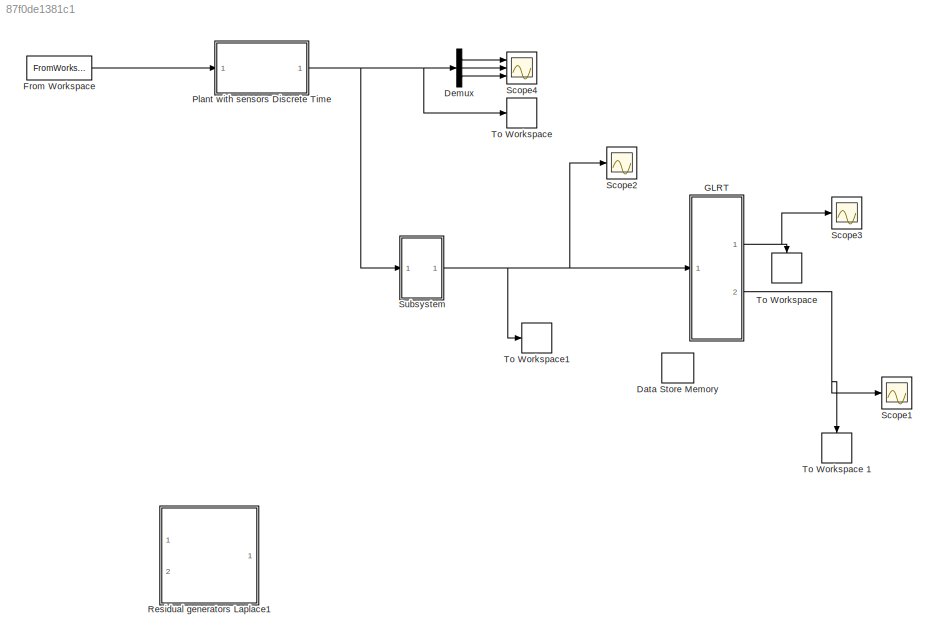
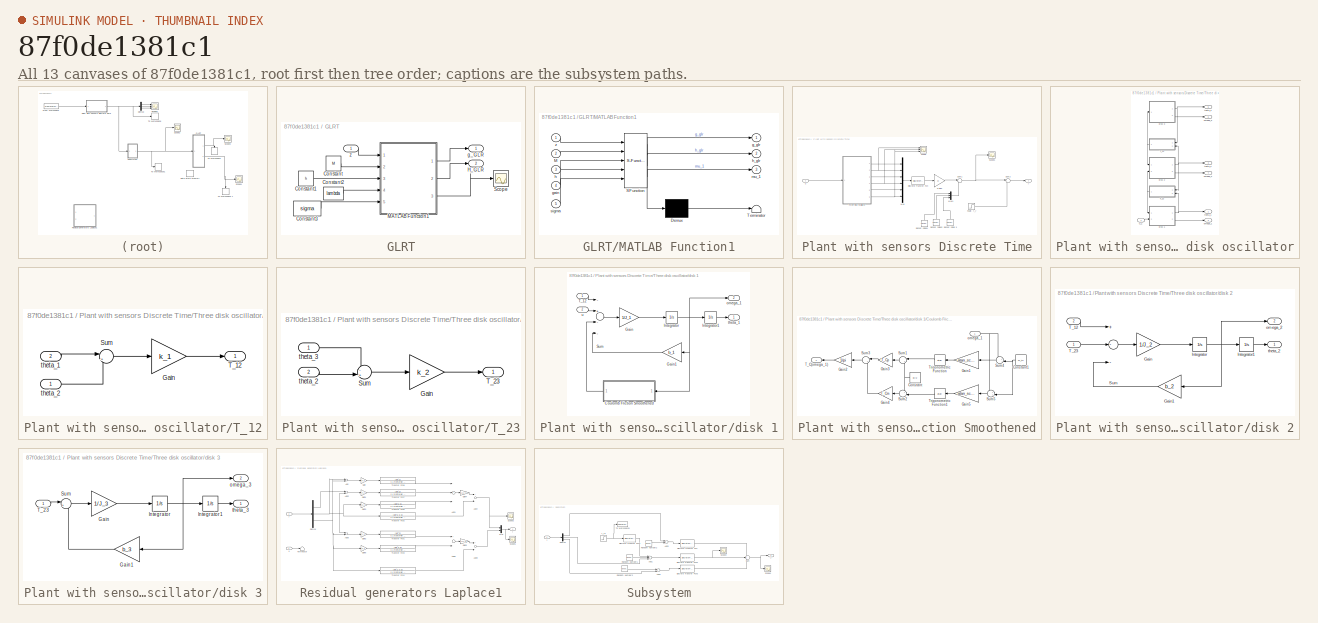
[diagram: thumbnail index - all 13 canvases of the model, root first then tree order]
MODEL slx_87f0de1381c1
KIND model
CONFIG AbsTol = auto
CONFIG EnableMultiTasking = off
CONFIG FixedStep = auto
CONFIG MaxStep = auto
CONFIG MinStep = auto
CONFIG RelTol = 1e-3
CONFIG SampleTimeConstraint = Unconstrained
CONFIG Solver = VariableStepAuto
CONFIG SolverName = VariableStepAuto
CONFIG StartTime = 0.0
CONFIG StopTime = simTime
BLOCK [DataStoreMemory] Data Store Memory
  DataStoreName = data
  InitialValue = A_init
  OutDataTypeStr = double
  ReadBeforeWriteMsg = warning
  ShowAdditionalParam = off
  SignalType = real
  WriteAfterReadMsg = warning
  WriteAfterWriteMsg = warning
BLOCK [Demux] Demux
  DisplayOption = bar
  Outputs = 3
  Ports = [1, 3]
BLOCK [FromWorkspace] From Workspace
  SampleTime = 0
  VariableName = u
  ZeroCross = on
BLOCK [SubSystem] GLRT
  Ports = [1, 2]
  RequestExecContextInheritance = off
BLOCK [Constant] GLRT/Constant
  Value = M
BLOCK [Constant] GLRT/Constant1
  Value = h
BLOCK [Constant] GLRT/Constant2
  Value = lambda
BLOCK [Constant] GLRT/Constant3
  Value = sigma
BLOCK [Outport] GLRT/H_GLR
  IconDisplay = Port number
  Port = 2
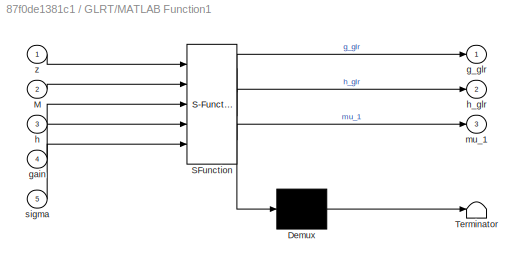
BLOCK [SubSystem] GLRT/MATLAB Function1
  ErrorFcn = Stateflow.Translate.translate
  PermitHierarchicalResolution = ExplicitOnly
  Ports = [5, 3]
  RequestExecContextInheritance = off
  SFBlockType = MATLAB Function
  TreatAsAtomicUnit = on
BLOCK [Demux] GLRT/MATLAB Function1/ Demux 
  Outputs = 1
  Ports = [1, 1]
BLOCK [S-Function] GLRT/MATLAB Function1/ SFunction 
  EnableBusSupport = on
  FunctionName = sf_sfun
  PortCounts = [5 4]
  Ports = [5, 4]
  SFcnIsStateOwnerBlock = off
  SFunctionDeploymentMode = off
  Tag = Stateflow S-Function Lab7 1
BLOCK [Terminator] GLRT/MATLAB Function1/ Terminator 
BLOCK [Inport] GLRT/MATLAB Function1/M
  IconDisplay = Port number
  Port = 2
BLOCK [Outport] GLRT/MATLAB Function1/g_glr
  IconDisplay = Port number
BLOCK [Inport] GLRT/MATLAB Function1/gain
  IconDisplay = Port number
  Port = 4
BLOCK [Inport] GLRT/MATLAB Function1/h
  IconDisplay = Port number
  Port = 3
BLOCK [Outport] GLRT/MATLAB Function1/h_glr
  IconDisplay = Port number
  Port = 2
BLOCK [Outport] GLRT/MATLAB Function1/mu_1
  IconDisplay = Port number
  Port = 3
BLOCK [Inport] GLRT/MATLAB Function1/sigma
  IconDisplay = Port number
  Port = 5
BLOCK [Inport] GLRT/MATLAB Function1/z
  IconDisplay = Port number
BLOCK [Scope] GLRT/Scope
  Floating = off
  NumInputPorts = 1
  Ports = [1]
  ScopeSpecificationString = Simulink.scopes.TimeScopeBlockCfg('CurrentConfiguration', extmgr.ConfigurationSet(extmgr.Configuration('Core','General UI',true),extmgr.Configuration('Core','Source UI',true),extmgr.Configuration('Sources','WiredSimulink',true,'DataLoggingVariableName','ScopeData1'),extmgr.Configuration('Visuals','Time Domain',true,'SerializedDisplays',{struct('MinYLimReal','-0.09358','MaxYLimReal','0.22462','YLab...<+1380ch>
BLOCK [Outport] GLRT/g_GLR
  IconDisplay = Port number
BLOCK [Inport] GLRT/z
  IconDisplay = Port number
BLOCK [SubSystem] Plant with sensors Discrete Time
  Ports = [1, 1]
  RequestExecContextInheritance = off
BLOCK [DiscreteTransferFcn] Plant with sensors Discrete Time/Discrete Transfer Fcn
  Denominator = [1]
  InputPortMap = u0
  Ports = [1, 1]
  SampleTime = 0.004
BLOCK [Step] Plant with sensors Discrete Time/Fault: f_y
  After = [0;f_m;0]
  Before = [0;0;0]
  Commented = on
  SampleTime = 0
  Time = 8.5
BLOCK [Gain] Plant with sensors Discrete Time/Gain2
  Gain = C
  Multiplication = Matrix(K*u) (u vector)
  OutDataTypeStr = Inherit: Inherit via internal rule
  ParamDataTypeStr = Inherit: Inherit via internal rule
  SaturateOnIntegerOverflow = off
BLOCK [Mux] Plant with sensors Discrete Time/Mux
  DisplayOption = bar
  Inputs = 6
  Ports = [6, 1]
BLOCK [Mux] Plant with sensors Discrete Time/Mux1
  Commented = on
  DisplayOption = bar
  Inputs = 3
  Ports = [3, 1]
BLOCK [Scope] Plant with sensors Discrete Time/Scope
  Floating = off
  NumInputPorts = 3
  Ports = [3]
  ScopeSpecificationString = Simulink.scopes.TimeScopeBlockCfg('CurrentConfiguration', extmgr.ConfigurationSet(extmgr.Configuration('Core','General UI',true),extmgr.Configuration('Core','Source UI',true),extmgr.Configuration('Sources','WiredSimulink',true),extmgr.Configuration('Visuals','Time Domain',true,'SerializedDisplays',{struct('MinYLimReal','-13.61032','MaxYLimReal','12.65081','YLabelReal','','MinYLimMag','0.00000','Ma...<+2776ch>
BLOCK [Scope] Plant with sensors Discrete Time/Scope1
  Floating = off
  NumInputPorts = 1
  Ports = [1]
  ScopeSpecificationString = Simulink.scopes.TimeScopeBlockCfg('CurrentConfiguration', extmgr.ConfigurationSet(extmgr.Configuration('Core','General UI',true),extmgr.Configuration('Core','Source UI',true),extmgr.Configuration('Sources','WiredSimulink',true,'DataLoggingVariableName','ScopeData4'),extmgr.Configuration('Visuals','Time Domain',true,'SerializedDisplays',{struct('MinYLimReal','-3.17099','MaxYLimReal','3.64245','YLab...<+2765ch>
BLOCK [RandomNumber] Plant with sensors Discrete Time/Sensor noise 3
  Commented = on
  SampleTime = T_s
  Seed = 2159
  Variance = 0.01^2
BLOCK [RandomNumber] Plant with sensors Discrete Time/Sensor noise1
  Commented = on
  SampleTime = T_s
  Seed = 215924
  Variance = 0.01^2
BLOCK [RandomNumber] Plant with sensors Discrete Time/Sensor noise2
  Commented = on
  SampleTime = T_s
  Seed = 21524
  Variance = 0.01^2
BLOCK [Sum] Plant with sensors Discrete Time/Sum1
  IconShape = round
  InputSameDT = off
  Inputs = |++
  OutDataTypeStr = Inherit: Inherit via internal rule
  Ports = [2, 1]
  SaturateOnIntegerOverflow = off
BLOCK [Sum] Plant with sensors Discrete Time/Sum2
  IconShape = round
  InputSameDT = off
  Inputs = |++
  OutDataTypeStr = Inherit: Inherit via internal rule
  Ports = [2, 1]
  SaturateOnIntegerOverflow = off
BLOCK [SubSystem] Plant with sensors Discrete Time/Three disk oscillator
  Ports = [1, 6]
  RequestExecContextInheritance = off
BLOCK [SubSystem] Plant with sensors Discrete Time/Three disk oscillator/T_12
  Ports = [2, 1]
  RequestExecContextInheritance = off
BLOCK [Gain] Plant with sensors Discrete Time/Three disk oscillator/T_12/Gain
  Gain = k_1
  OutDataTypeStr = Inherit: Inherit via internal rule
  ParamDataTypeStr = Inherit: Inherit via internal rule
  SaturateOnIntegerOverflow = off
BLOCK [Sum] Plant with sensors Discrete Time/Three disk oscillator/T_12/Sum
  IconShape = round
  InputSameDT = off
  Inputs = |+-
  OutDataTypeStr = Inherit: Inherit via internal rule
  Ports = [2, 1]
  SaturateOnIntegerOverflow = off
BLOCK [Outport] Plant with sensors Discrete Time/Three disk oscillator/T_12/T_12
  IconDisplay = Port number
BLOCK [Inport] Plant with sensors Discrete Time/Three disk oscillator/T_12/theta_1
  IconDisplay = Port number
  Port = 2
BLOCK [Inport] Plant with sensors Discrete Time/Three disk oscillator/T_12/theta_2
  IconDisplay = Port number
BLOCK [SubSystem] Plant with sensors Discrete Time/Three disk oscillator/T_23
  Ports = [2, 1]
  RequestExecContextInheritance = off
BLOCK [Gain] Plant with sensors Discrete Time/Three disk oscillator/T_23/Gain
  Gain = k_2
  OutDataTypeStr = Inherit: Inherit via internal rule
  ParamDataTypeStr = Inherit: Inherit via internal rule
  SaturateOnIntegerOverflow = off
BLOCK [Sum] Plant with sensors Discrete Time/Three disk oscillator/T_23/Sum
  IconShape = round
  InputSameDT = off
  Inputs = -+|
  OutDataTypeStr = Inherit: Inherit via internal rule
  Ports = [2, 1]
  SaturateOnIntegerOverflow = off
BLOCK [Outport] Plant with sensors Discrete Time/Three disk oscillator/T_23/T_23
  IconDisplay = Port number
BLOCK [Inport] Plant with sensors Discrete Time/Three disk oscillator/T_23/theta_2
  IconDisplay = Port number
  Port = 2
BLOCK [Inport] Plant with sensors Discrete Time/Three disk oscillator/T_23/theta_3
  IconDisplay = Port number
BLOCK [SubSystem] Plant with sensors Discrete Time/Three disk oscillator/disk 1
  Ports = [2, 2]
  RequestExecContextInheritance = off
BLOCK [SubSystem] Plant with sensors Discrete Time/Three disk oscillator/disk 1/Coulomb Friction Smoothened
  Ports = [1, 1]
  RequestExecContextInheritance = off
BLOCK [Constant] Plant with sensors Discrete Time/Three disk oscillator/disk 1/Coulomb Friction Smoothened/Constant
  Value = pi/2
BLOCK [Constant] Plant with sensors Discrete Time/Three disk oscillator/disk 1/Coulomb Friction Smoothened/Constant1
  Value = w_th
BLOCK [Gain] Plant with sensors Discrete Time/Three disk oscillator/disk 1/Coulomb Friction Smoothened/Gain1
  Gain = atan_scale
  OutDataTypeStr = Inherit: Inherit via internal rule
  ParamDataTypeStr = Inherit: Inherit via internal rule
  SaturateOnIntegerOverflow = off
BLOCK [Gain] Plant with sensors Discrete Time/Three disk oscillator/disk 1/Coulomb Friction Smoothened/Gain2
  Gain = 1/pi
  OutDataTypeStr = Inherit: Inherit via internal rule
  ParamDataTypeStr = Inherit: Inherit via internal rule
  SaturateOnIntegerOverflow = off
BLOCK [Gain] Plant with sensors Discrete Time/Three disk oscillator/disk 1/Coulomb Friction Smoothened/Gain3
  Gain = T_Cp
  OutDataTypeStr = Inherit: Inherit via internal rule
  ParamDataTypeStr = Inherit: Inherit via internal rule
  SaturateOnIntegerOverflow = off
BLOCK [Gain] Plant with sensors Discrete Time/Three disk oscillator/disk 1/Coulomb Friction Smoothened/Gain4
  Gain = T_Cm
  OutDataTypeStr = Inherit: Inherit via internal rule
  ParamDataTypeStr = Inherit: Inherit via internal rule
  SaturateOnIntegerOverflow = off
BLOCK [Gain] Plant with sensors Discrete Time/Three disk oscillator/disk 1/Coulomb Friction Smoothened/Gain5
  Gain = atan_scale
  OutDataTypeStr = Inherit: Inherit via internal rule
  ParamDataTypeStr = Inherit: Inherit via internal rule
  SaturateOnIntegerOverflow = off
BLOCK [Sum] Plant with sensors Discrete Time/Three disk oscillator/disk 1/Coulomb Friction Smoothened/Sum1
  IconShape = round
  InputSameDT = off
  Inputs = |++
  OutDataTypeStr = Inherit: Inherit via internal rule
  Ports = [2, 1]
  SaturateOnIntegerOverflow = off
BLOCK [Sum] Plant with sensors Discrete Time/Three disk oscillator/disk 1/Coulomb Friction Smoothened/Sum2
  IconShape = round
  InputSameDT = off
  Inputs = +-|
  OutDataTypeStr = Inherit: Inherit via internal rule
  Ports = [2, 1]
  SaturateOnIntegerOverflow = off
BLOCK [Sum] Plant with sensors Discrete Time/Three disk oscillator/disk 1/Coulomb Friction Smoothened/Sum3
  IconShape = round
  InputSameDT = off
  Inputs = |+-
  OutDataTypeStr = Inherit: Inherit via internal rule
  Ports = [2, 1]
  SaturateOnIntegerOverflow = off
BLOCK [Sum] Plant with sensors Discrete Time/Three disk oscillator/disk 1/Coulomb Friction Smoothened/Sum4
  IconShape = round
  InputSameDT = off
  Inputs = +-|
  OutDataTypeStr = Inherit: Inherit via internal rule
  Ports = [2, 1]
  SaturateOnIntegerOverflow = off
BLOCK [Sum] Plant with sensors Discrete Time/Three disk oscillator/disk 1/Coulomb Friction Smoothened/Sum5
  IconShape = round
  InputSameDT = off
  Inputs = ++|
  OutDataTypeStr = Inherit: Inherit via internal rule
  Ports = [2, 1]
  SaturateOnIntegerOverflow = off
BLOCK [Outport] Plant with sensors Discrete Time/Three disk oscillator/disk 1/Coulomb Friction Smoothened/T_C(omega_1)
  IconDisplay = Port number
BLOCK [Trigonometry] Plant with sensors Discrete Time/Three disk oscillator/disk 1/Coulomb Friction Smoothened/Trigonometric Function
  Operator = atan
  Ports = [1, 1]
BLOCK [Trigonometry] Plant with sensors Discrete Time/Three disk oscillator/disk 1/Coulomb Friction Smoothened/Trigonometric Function1
  Operator = atan
  Ports = [1, 1]
BLOCK [Inport] Plant with sensors Discrete Time/Three disk oscillator/disk 1/Coulomb Friction Smoothened/omega_1
  IconDisplay = Port number
BLOCK [Gain] Plant with sensors Discrete Time/Three disk oscillator/disk 1/Gain
  Gain = 1/J_1
  OutDataTypeStr = Inherit: Inherit via internal rule
  ParamDataTypeStr = Inherit: Inherit via internal rule
  SaturateOnIntegerOverflow = off
BLOCK [Gain] Plant with sensors Discrete Time/Three disk oscillator/disk 1/Gain1
  Gain = b_1
  OutDataTypeStr = Inherit: Inherit via internal rule
  ParamDataTypeStr = Inherit: Inherit via internal rule
  SaturateOnIntegerOverflow = off
BLOCK [Integrator] Plant with sensors Discrete Time/Three disk oscillator/disk 1/Integrator
  InitialCondition = x_0(2)
  Ports = [1, 1]
BLOCK [Integrator] Plant with sensors Discrete Time/Three disk oscillator/disk 1/Integrator1
  InitialCondition = x_0(1)
  Ports = [1, 1]
BLOCK [Sum] Plant with sensors Discrete Time/Three disk oscillator/disk 1/Sum
  InputSameDT = off
  Inputs = -+--
  OutDataTypeStr = Inherit: Inherit via internal rule
  Ports = [4, 1]
  SaturateOnIntegerOverflow = off
BLOCK [Inport] Plant with sensors Discrete Time/Three disk oscillator/disk 1/T_12
  IconDisplay = Port number
BLOCK [Outport] Plant with sensors Discrete Time/Three disk oscillator/disk 1/omega_1
  IconDisplay = Port number
  Port = 2
BLOCK [Outport] Plant with sensors Discrete Time/Three disk oscillator/disk 1/theta_1
  IconDisplay = Port number
BLOCK [Inport] Plant with sensors Discrete Time/Three disk oscillator/disk 1/u
  IconDisplay = Port number
  Port = 2
BLOCK [SubSystem] Plant with sensors Discrete Time/Three disk oscillator/disk 2
  Ports = [2, 2]
  RequestExecContextInheritance = off
BLOCK [Gain] Plant with sensors Discrete Time/Three disk oscillator/disk 2/Gain
  Gain = 1/J_2
  OutDataTypeStr = Inherit: Inherit via internal rule
  ParamDataTypeStr = Inherit: Inherit via internal rule
  SaturateOnIntegerOverflow = off
BLOCK [Gain] Plant with sensors Discrete Time/Three disk oscillator/disk 2/Gain1
  Gain = b_2
  OutDataTypeStr = Inherit: Inherit via internal rule
  ParamDataTypeStr = Inherit: Inherit via internal rule
  SaturateOnIntegerOverflow = off
BLOCK [Integrator] Plant with sensors Discrete Time/Three disk oscillator/disk 2/Integrator
  InitialCondition = x_0(4)
  Ports = [1, 1]
BLOCK [Integrator] Plant with sensors Discrete Time/Three disk oscillator/disk 2/Integrator1
  InitialCondition = x_0(3)
  Ports = [1, 1]
BLOCK [Sum] Plant with sensors Discrete Time/Three disk oscillator/disk 2/Sum
  InputSameDT = off
  Inputs = +--
  OutDataTypeStr = Inherit: Inherit via internal rule
  Ports = [3, 1]
  SaturateOnIntegerOverflow = off
BLOCK [Inport] Plant with sensors Discrete Time/Three disk oscillator/disk 2/T_12
  IconDisplay = Port number
  Port = 2
BLOCK [Inport] Plant with sensors Discrete Time/Three disk oscillator/disk 2/T_23
  IconDisplay = Port number
BLOCK [Outport] Plant with sensors Discrete Time/Three disk oscillator/disk 2/omega_2
  IconDisplay = Port number
  Port = 2
BLOCK [Outport] Plant with sensors Discrete Time/Three disk oscillator/disk 2/theta_2
  IconDisplay = Port number
BLOCK [SubSystem] Plant with sensors Discrete Time/Three disk oscillator/disk 3
  Ports = [1, 2]
  RequestExecContextInheritance = off
BLOCK [Gain] Plant with sensors Discrete Time/Three disk oscillator/disk 3/Gain
  Gain = 1/J_3
  OutDataTypeStr = Inherit: Inherit via internal rule
  ParamDataTypeStr = Inherit: Inherit via internal rule
  SaturateOnIntegerOverflow = off
BLOCK [Gain] Plant with sensors Discrete Time/Three disk oscillator/disk 3/Gain1
  Gain = b_3
  OutDataTypeStr = Inherit: Inherit via internal rule
  ParamDataTypeStr = Inherit: Inherit via internal rule
  SaturateOnIntegerOverflow = off
BLOCK [Integrator] Plant with sensors Discrete Time/Three disk oscillator/disk 3/Integrator
  InitialCondition = x_0(6)
  Ports = [1, 1]
BLOCK [Integrator] Plant with sensors Discrete Time/Three disk oscillator/disk 3/Integrator1
  InitialCondition = x_0(5)
  Ports = [1, 1]
BLOCK [Sum] Plant with sensors Discrete Time/Three disk oscillator/disk 3/Sum
  IconShape = round
  InputSameDT = off
  Inputs = |+-
  OutDataTypeStr = Inherit: Inherit via internal rule
  Ports = [2, 1]
  SaturateOnIntegerOverflow = off
BLOCK [Inport] Plant with sensors Discrete Time/Three disk oscillator/disk 3/T_23
  IconDisplay = Port number
BLOCK [Outport] Plant with sensors Discrete Time/Three disk oscillator/disk 3/omega_3
  IconDisplay = Port number
  Port = 2
BLOCK [Outport] Plant with sensors Discrete Time/Three disk oscillator/disk 3/theta_3
  IconDisplay = Port number
BLOCK [Outport] Plant with sensors Discrete Time/Three disk oscillator/omega_1
  IconDisplay = Port number
  Port = 2
BLOCK [Outport] Plant with sensors Discrete Time/Three disk oscillator/omega_2
  IconDisplay = Port number
  Port = 4
BLOCK [Outport] Plant with sensors Discrete Time/Three disk oscillator/omega_3
  IconDisplay = Port number
  Port = 6
BLOCK [Outport] Plant with sensors Discrete Time/Three disk oscillator/theta_1
  IconDisplay = Port number
BLOCK [Outport] Plant with sensors Discrete Time/Three disk oscillator/theta_2
  IconDisplay = Port number
  Port = 3
BLOCK [Outport] Plant with sensors Discrete Time/Three disk oscillator/theta_3
  IconDisplay = Port number
  Port = 5
BLOCK [Inport] Plant with sensors Discrete Time/Three disk oscillator/u_1
  IconDisplay = Port number
BLOCK [Inport] Plant with sensors Discrete Time/u
  IconDisplay = Port number
BLOCK [Outport] Plant with sensors Discrete Time/y
  IconDisplay = Port number
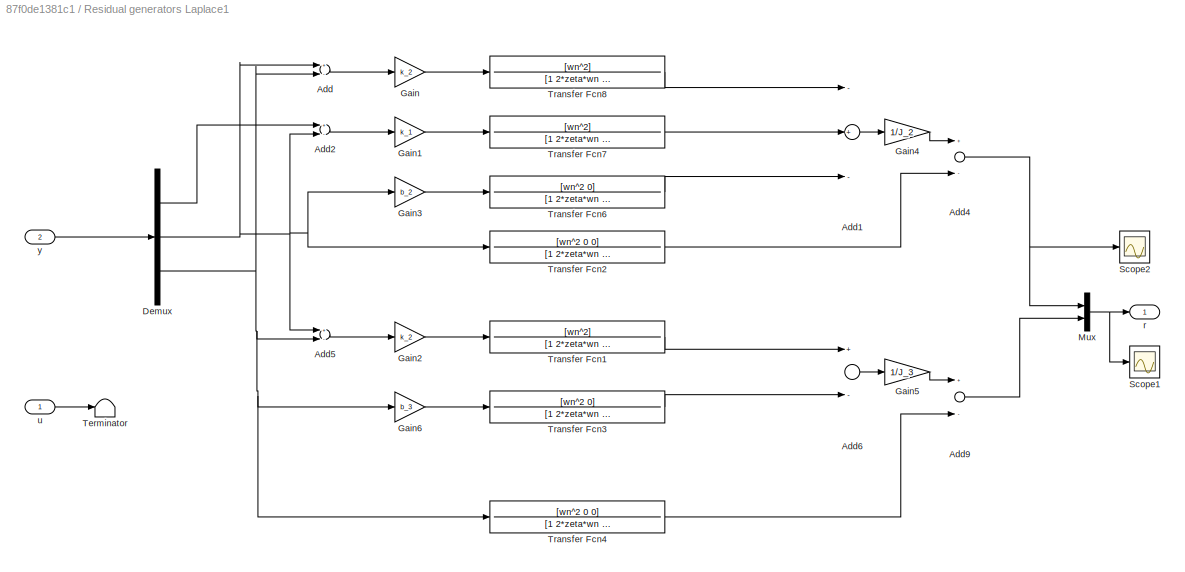
BLOCK [SubSystem] Residual generators Laplace1
  Commented = on
  Ports = [2, 1]
  RequestExecContextInheritance = off
BLOCK [Sum] Residual generators Laplace1/Add
  InputSameDT = off
  Inputs = +-
  OutDataTypeStr = Inherit: Inherit via internal rule
  Ports = [2, 1]
  SaturateOnIntegerOverflow = off
BLOCK [Sum] Residual generators Laplace1/Add1
  InputSameDT = off
  Inputs = -+-
  OutDataTypeStr = Inherit: Inherit via internal rule
  Ports = [3, 1]
  SaturateOnIntegerOverflow = off
BLOCK [Sum] Residual generators Laplace1/Add2
  InputSameDT = off
  Inputs = +-
  OutDataTypeStr = Inherit: Inherit via internal rule
  Ports = [2, 1]
  SaturateOnIntegerOverflow = off
BLOCK [Sum] Residual generators Laplace1/Add4
  InputSameDT = off
  Inputs = +-
  OutDataTypeStr = Inherit: Inherit via internal rule
  Ports = [2, 1]
  SaturateOnIntegerOverflow = off
BLOCK [Sum] Residual generators Laplace1/Add5
  InputSameDT = off
  Inputs = +-
  OutDataTypeStr = Inherit: Inherit via internal rule
  Ports = [2, 1]
  SaturateOnIntegerOverflow = off
BLOCK [Sum] Residual generators Laplace1/Add6
  InputSameDT = off
  Inputs = +-
  OutDataTypeStr = Inherit: Inherit via internal rule
  Ports = [2, 1]
  SaturateOnIntegerOverflow = off
BLOCK [Sum] Residual generators Laplace1/Add9
  InputSameDT = off
  Inputs = +-
  OutDataTypeStr = Inherit: Inherit via internal rule
  Ports = [2, 1]
  SaturateOnIntegerOverflow = off
BLOCK [Demux] Residual generators Laplace1/Demux
  DisplayOption = bar
  Outputs = 3
  Ports = [1, 3]
BLOCK [Gain] Residual generators Laplace1/Gain
  Gain = k_2
  OutDataTypeStr = Inherit: Inherit via internal rule
  ParamDataTypeStr = Inherit: Inherit via internal rule
  SaturateOnIntegerOverflow = off
BLOCK [Gain] Residual generators Laplace1/Gain1
  Gain = k_1
  OutDataTypeStr = Inherit: Inherit via internal rule
  ParamDataTypeStr = Inherit: Inherit via internal rule
  SaturateOnIntegerOverflow = off
BLOCK [Gain] Residual generators Laplace1/Gain2
  Gain = k_2
  OutDataTypeStr = Inherit: Inherit via internal rule
  ParamDataTypeStr = Inherit: Inherit via internal rule
  SaturateOnIntegerOverflow = off
BLOCK [Gain] Residual generators Laplace1/Gain3
  Gain = b_2
  OutDataTypeStr = Inherit: Inherit via internal rule
  ParamDataTypeStr = Inherit: Inherit via internal rule
  SaturateOnIntegerOverflow = off
BLOCK [Gain] Residual generators Laplace1/Gain4
  Gain = 1/J_2
  OutDataTypeStr = Inherit: Inherit via internal rule
  ParamDataTypeStr = Inherit: Inherit via internal rule
  SaturateOnIntegerOverflow = off
BLOCK [Gain] Residual generators Laplace1/Gain5
  Gain = 1/J_3
  OutDataTypeStr = Inherit: Inherit via internal rule
  ParamDataTypeStr = Inherit: Inherit via internal rule
  SaturateOnIntegerOverflow = off
BLOCK [Gain] Residual generators Laplace1/Gain6
  Gain = b_3
  OutDataTypeStr = Inherit: Inherit via internal rule
  ParamDataTypeStr = Inherit: Inherit via internal rule
  SaturateOnIntegerOverflow = off
BLOCK [Mux] Residual generators Laplace1/Mux
  DisplayOption = bar
  Inputs = 2
  Ports = [2, 1]
BLOCK [Scope] Residual generators Laplace1/Scope1
  Floating = off
  NumInputPorts = 1
  Ports = [1]
  ScopeSpecificationString = Simulink.scopes.TimeScopeBlockCfg('CurrentConfiguration', extmgr.ConfigurationSet(extmgr.Configuration('Core','General UI',true),extmgr.Configuration('Core','Source UI',true),extmgr.Configuration('Sources','WiredSimulink',true,'DataLoggingVariableName','ScopeData2'),extmgr.Configuration('Visuals','Time Domain',true,'SerializedDisplays',{struct('MinYLimReal','-48.22014','MaxYLimReal','38.93087','YL...<+1475ch>
BLOCK [Scope] Residual generators Laplace1/Scope2
  Floating = off
  NumInputPorts = 1
  Ports = [1]
  ScopeSpecificationString = Simulink.scopes.TimeScopeBlockCfg('CurrentConfiguration', extmgr.ConfigurationSet(extmgr.Configuration('Core','General UI',true),extmgr.Configuration('Core','Source UI',true),extmgr.Configuration('Sources','WiredSimulink',true,'DataLoggingVariableName','ScopeData2'),extmgr.Configuration('Visuals','Time Domain',true,'SerializedDisplays',{struct('MinYLimReal','-0.00011','MaxYLimReal','0.00026','YLab...<+1462ch>
BLOCK [Terminator] Residual generators Laplace1/Terminator
BLOCK [TransferFcn] Residual generators Laplace1/Transfer Fcn1
  Denominator = [1 2*zeta*wn wn^2]
  Numerator = [wn^2]
BLOCK [TransferFcn] Residual generators Laplace1/Transfer Fcn2
  Denominator = [1 2*zeta*wn wn^2]
  Numerator = [wn^2 0 0]
BLOCK [TransferFcn] Residual generators Laplace1/Transfer Fcn3
  Denominator = [1 2*zeta*wn wn^2]
  Numerator = [wn^2 0]
BLOCK [TransferFcn] Residual generators Laplace1/Transfer Fcn4
  Denominator = [1 2*zeta*wn wn^2]
  Numerator = [wn^2 0 0]
BLOCK [TransferFcn] Residual generators Laplace1/Transfer Fcn6
  Denominator = [1 2*zeta*wn wn^2]
  Numerator = [wn^2 0]
BLOCK [TransferFcn] Residual generators Laplace1/Transfer Fcn7
  Denominator = [1 2*zeta*wn wn^2]
  Numerator = [wn^2]
BLOCK [TransferFcn] Residual generators Laplace1/Transfer Fcn8
  Denominator = [1 2*zeta*wn wn^2]
  Numerator = [wn^2]
BLOCK [Outport] Residual generators Laplace1/r
  IconDisplay = Port number
BLOCK [Inport] Residual generators Laplace1/u
  IconDisplay = Port number
BLOCK [Inport] Residual generators Laplace1/y
  IconDisplay = Port number
  Port = 2
BLOCK [Scope] Scope1
  Floating = off
  NumInputPorts = 1
  Ports = [1]
  ScopeSpecificationString = Simulink.scopes.TimeScopeBlockCfg('CurrentConfiguration', extmgr.ConfigurationSet(extmgr.Configuration('Core','General UI',true),extmgr.Configuration('Core','Source UI',true),extmgr.Configuration('Sources','WiredSimulink',true,'DataLoggingVariableName','ScopeData1'),extmgr.Configuration('Visuals','Time Domain',true,'SerializedDisplays',{struct('MinYLimReal','-0.125','MaxYLimReal','1.125','YLabelRe...<+1441ch>
BLOCK [Scope] Scope2
  Floating = off
  NumInputPorts = 1
  Ports = [1]
  ScopeSpecificationString = Simulink.scopes.TimeScopeBlockCfg('CurrentConfiguration', extmgr.ConfigurationSet(extmgr.Configuration('Core','General UI',true),extmgr.Configuration('Core','Source UI',true),extmgr.Configuration('Sources','WiredSimulink',true,'DataLoggingVariableName','ScopeData2'),extmgr.Configuration('Visuals','Time Domain',true,'SerializedDisplays',{struct('MinYLimReal','-3.49197','MaxYLimReal','0.68766','YLab...<+1452ch>
BLOCK [Scope] Scope3
  Floating = off
  NumInputPorts = 1
  Ports = [1]
  ScopeSpecificationString = Simulink.scopes.TimeScopeBlockCfg('CurrentConfiguration', extmgr.ConfigurationSet(extmgr.Configuration('Core','General UI',true),extmgr.Configuration('Core','Source UI',true),extmgr.Configuration('Sources','WiredSimulink',true,'DataLoggingVariableName','ScopeData2'),extmgr.Configuration('Visuals','Time Domain',true,'SerializedDisplays',{struct('MinYLimReal','-3.51691','MaxYLimReal','31.65218','YLa...<+1457ch>
BLOCK [Scope] Scope4
  Floating = off
  NumInputPorts = 3
  Ports = [3]
  ScopeSpecificationString = Simulink.scopes.TimeScopeBlockCfg('CurrentConfiguration', extmgr.ConfigurationSet(extmgr.Configuration('Core','General UI',true),extmgr.Configuration('Core','Source UI',true),extmgr.Configuration('Sources','WiredSimulink',true,'DataLoggingVariableName','ScopeData3'),extmgr.Configuration('Visuals','Time Domain',true,'SerializedDisplays',{struct('MinYLimReal','-3.17099','MaxYLimReal','3.64245','YLab...<+1485ch>
BLOCK [SubSystem] Subsystem
  Ports = [1, 1]
  RequestExecContextInheritance = off
BLOCK [Sum] Subsystem/Add1
  InputSameDT = off
  Inputs = +++
  OutDataTypeStr = Inherit: Inherit via internal rule
  Ports = [3, 1]
  SaturateOnIntegerOverflow = off
BLOCK [Sum] Subsystem/Add2
  InputSameDT = off
  OutDataTypeStr = Inherit: Inherit via internal rule
  Ports = [2, 1]
  SaturateOnIntegerOverflow = off
BLOCK [Sum] Subsystem/Add3
  InputSameDT = off
  OutDataTypeStr = Inherit: Inherit via internal rule
  Ports = [2, 1]
  SaturateOnIntegerOverflow = off
BLOCK [Demux] Subsystem/Demux
  DisplayOption = bar
  Outputs = 3
  Ports = [1, 3]
BLOCK [DiscreteTransferFcn] Subsystem/Discrete Transfer Fcn
  Denominator = G_y1_d.Denominator{1,1}
  InputPortMap = u0
  Numerator = G_y1_d.Numerator{1,1}
  Ports = [1, 1]
BLOCK [DiscreteTransferFcn] Subsystem/Discrete Transfer Fcn1
  Denominator = [1]
  InputPortMap = u0
  Ports = [1, 1]
  SampleTime = 0.004
BLOCK [DiscreteTransferFcn] Subsystem/Discrete Transfer Fcn2
  Denominator = G_y2_d.Denominator{1,1}
  InputPortMap = u0
  Numerator = G_y2_d.Numerator{1,1}
  Ports = [1, 1]
BLOCK [DiscreteTransferFcn] Subsystem/Discrete Transfer Fcn3
  Denominator = G_y3_d.Denominator{1,1}
  InputPortMap = u0
  Numerator = G_y3_d.Numerator{1,1}
  Ports = [1, 1]
BLOCK [RandomNumber] Subsystem/Random Number1
  SampleTime = T_s
  Seed = 42314
  Variance = sigma_1^2
BLOCK [RandomNumber] Subsystem/Random Number2
  SampleTime = T_s
  Seed = 12423
  Variance = sigma_1^2
BLOCK [RandomNumber] Subsystem/Random Number3
  SampleTime = T_s
  Seed = 8676
  Variance = sigma_1^2
BLOCK [Scope] Subsystem/Scope1
  Floating = off
  NumInputPorts = 1
  Ports = [1]
  ScopeSpecificationString = Simulink.scopes.TimeScopeBlockCfg('CurrentConfiguration', extmgr.ConfigurationSet(extmgr.Configuration('Core','General UI',true),extmgr.Configuration('Core','Source UI',true),extmgr.Configuration('Sources','WiredSimulink',true,'DataLoggingVariableName','ScopeData4'),extmgr.Configuration('Visuals','Time Domain',true,'SerializedDisplays',{struct('MinYLimReal','-0.28252','MaxYLimReal','0.27193','YLab...<+1446ch>
BLOCK [Scope] Subsystem/Scope2
  Floating = off
  NumInputPorts = 1
  Ports = [1]
  ScopeSpecificationString = Simulink.scopes.TimeScopeBlockCfg('CurrentConfiguration', extmgr.ConfigurationSet(extmgr.Configuration('Core','General UI',true),extmgr.Configuration('Core','Source UI',true),extmgr.Configuration('Sources','WiredSimulink',true,'DataLoggingVariableName','ScopeData5'),extmgr.Configuration('Visuals','Time Domain',true,'SerializedDisplays',{struct('MinYLimReal','-2.69757','MaxYLimReal','8.38809','YLab...<+1465ch>
BLOCK [Sum] Subsystem/Sum
  IconShape = round
  InputSameDT = off
  Inputs = +++
  OutDataTypeStr = Inherit: Inherit via internal rule
  Ports = [3, 1]
  SaturateOnIntegerOverflow = off
BLOCK [ToWorkspace] Subsystem/To Workspace1
  FixptAsFi = on
  MaxDataPoints = inf
  Ports = [1]
  SampleTime = -1
  SaveFormat = Structure With Time
  VariableName = f_y2
BLOCK [Step] Subsystem/f_y2 
  After = f_2
  SampleTime = 0
  Time = 8.5
BLOCK [Outport] Subsystem/r
  IconDisplay = Port number
BLOCK [Inport] Subsystem/y
  IconDisplay = Port number
BLOCK [ToWorkspace] To Workspace
  FixptAsFi = on
  MaxDataPoints = inf
  Ports = [1]
  SampleTime = -1
  SaveFormat = Structure With Time
  VariableName = y
BLOCK [ToWorkspace] To Workspace 
  FixptAsFi = on
  MaxDataPoints = inf
  Ports = [1]
  SampleTime = -1
  SaveFormat = Structure With Time
  VariableName = g_GLR
BLOCK [ToWorkspace] To Workspace 1
  FixptAsFi = on
  MaxDataPoints = inf
  Ports = [1]
  SampleTime = -1
  SaveFormat = Structure With Time
  VariableName = H_GLR
BLOCK [ToWorkspace] To Workspace1
  FixptAsFi = on
  MaxDataPoints = inf
  Ports = [1]
  SampleTime = -1
  SaveFormat = Structure With Time
  VariableName = r
LINE Demux:1 -> Scope4:1
LINE Demux:2 -> Scope4:2
LINE Demux:3 -> Scope4:3
LINE From Workspace:1 -> Plant with sensors Discrete Time:1
LINE GLRT/Constant1:1 -> GLRT/MATLAB Function1:3
LINE GLRT/Constant2:1 -> GLRT/MATLAB Function1:4
LINE GLRT/Constant3:1 -> GLRT/MATLAB Function1:5
LINE GLRT/Constant:1 -> GLRT/MATLAB Function1:2
LINE GLRT/MATLAB Function1:1 -> GLRT/g_GLR:1
LINE GLRT/MATLAB Function1:2 -> GLRT/H_GLR:1
LINE GLRT/MATLAB Function1:3 -> GLRT/Scope:1
LINE GLRT/z:1 -> GLRT/MATLAB Function1:1
NET GLRT:1 -> Scope3:1, To Workspace :1
NET GLRT:2 -> Scope1:1, To Workspace 1:1
LINE Plant with sensors Discrete Time/Discrete Transfer Fcn:1 -> Plant with sensors Discrete Time/Gain2:1
LINE Plant with sensors Discrete Time/Fault: f_y:1 -> Plant with sensors Discrete Time/Sum2:2
LINE Plant with sensors Discrete Time/Gain2:1 -> Plant with sensors Discrete Time/Sum1:1
LINE Plant with sensors Discrete Time/Mux1:1 -> Plant with sensors Discrete Time/Sum1:2
LINE Plant with sensors Discrete Time/Mux:1 -> Plant with sensors Discrete Time/Discrete Transfer Fcn:1
LINE Plant with sensors Discrete Time/Sensor noise 3:1 -> Plant with sensors Discrete Time/Mux1:3
LINE Plant with sensors Discrete Time/Sensor noise1:1 -> Plant with sensors Discrete Time/Mux1:1
LINE Plant with sensors Discrete Time/Sensor noise2:1 -> Plant with sensors Discrete Time/Mux1:2
NET Plant with sensors Discrete Time/Sum1:1 -> Plant with sensors Discrete Time/Scope1:1, Plant with sensors Discrete Time/Sum2:1
LINE Plant with sensors Discrete Time/Sum2:1 -> Plant with sensors Discrete Time/y:1
LINE Plant with sensors Discrete Time/Three disk oscillator/T_12/Gain:1 -> Plant with sensors Discrete Time/Three disk oscillator/T_12/T_12:1
LINE Plant with sensors Discrete Time/Three disk oscillator/T_12/Sum:1 -> Plant with sensors Discrete Time/Three disk oscillator/T_12/Gain:1
LINE Plant with sensors Discrete Time/Three disk oscillator/T_12/theta_1:1 -> Plant with sensors Discrete Time/Three disk oscillator/T_12/Sum:1
LINE Plant with sensors Discrete Time/Three disk oscillator/T_12/theta_2:1 -> Plant with sensors Discrete Time/Three disk oscillator/T_12/Sum:2
NET Plant with sensors Discrete Time/Three disk oscillator/T_12:1 -> Plant with sensors Discrete Time/Three disk oscillator/disk 1:1, Plant with sensors Discrete Time/Three disk oscillator/disk 2:2
LINE Plant with sensors Discrete Time/Three disk oscillator/T_23/Gain:1 -> Plant with sensors Discrete Time/Three disk oscillator/T_23/T_23:1
LINE Plant with sensors Discrete Time/Three disk oscillator/T_23/Sum:1 -> Plant with sensors Discrete Time/Three disk oscillator/T_23/Gain:1
LINE Plant with sensors Discrete Time/Three disk oscillator/T_23/theta_2:1 -> Plant with sensors Discrete Time/Three disk oscillator/T_23/Sum:2
LINE Plant with sensors Discrete Time/Three disk oscillator/T_23/theta_3:1 -> Plant with sensors Discrete Time/Three disk oscillator/T_23/Sum:1
NET Plant with sensors Discrete Time/Three disk oscillator/T_23:1 -> Plant with sensors Discrete Time/Three disk oscillator/disk 2:1, Plant with sensors Discrete Time/Three disk oscillator/disk 3:1
NET Plant with sensors Discrete Time/Three disk oscillator/disk 1/Coulomb Friction Smoothened/Constant1:1 -> Plant with sensors Discrete Time/Three disk oscillator/disk 1/Coulomb Friction Smoothened/Sum4:2, Plant with sensors Discrete Time/Three disk oscillator/disk 1/Coulomb Friction Smoothened/Sum5:2
NET Plant with sensors Discrete Time/Three disk oscillator/disk 1/Coulomb Friction Smoothened/Constant:1 -> Plant with sensors Discrete Time/Three disk oscillator/disk 1/Coulomb Friction Smoothened/Sum1:2, Plant with sensors Discrete Time/Three disk oscillator/disk 1/Coulomb Friction Smoothened/Sum2:1
LINE Plant with sensors Discrete Time/Three disk oscillator/disk 1/Coulomb Friction Smoothened/Gain1:1 -> Plant with sensors Discrete Time/Three disk oscillator/disk 1/Coulomb Friction Smoothened/Trigonometric Function:1
LINE Plant with sensors Discrete Time/Three disk oscillator/disk 1/Coulomb Friction Smoothened/Gain2:1 -> Plant with sensors Discrete Time/Three disk oscillator/disk 1/Coulomb Friction Smoothened/T_C(omega_1):1
LINE Plant with sensors Discrete Time/Three disk oscillator/disk 1/Coulomb Friction Smoothened/Gain3:1 -> Plant with sensors Discrete Time/Three disk oscillator/disk 1/Coulomb Friction Smoothened/Sum3:1
LINE Plant with sensors Discrete Time/Three disk oscillator/disk 1/Coulomb Friction Smoothened/Gain4:1 -> Plant with sensors Discrete Time/Three disk oscillator/disk 1/Coulomb Friction Smoothened/Sum3:2
LINE Plant with sensors Discrete Time/Three disk oscillator/disk 1/Coulomb Friction Smoothened/Gain5:1 -> Plant with sensors Discrete Time/Three disk oscillator/disk 1/Coulomb Friction Smoothened/Trigonometric Function1:1
LINE Plant with sensors Discrete Time/Three disk oscillator/disk 1/Coulomb Friction Smoothened/Sum1:1 -> Plant with sensors Discrete Time/Three disk oscillator/disk 1/Coulomb Friction Smoothened/Gain3:1
LINE Plant with sensors Discrete Time/Three disk oscillator/disk 1/Coulomb Friction Smoothened/Sum2:1 -> Plant with sensors Discrete Time/Three disk oscillator/disk 1/Coulomb Friction Smoothened/Gain4:1
LINE Plant with sensors Discrete Time/Three disk oscillator/disk 1/Coulomb Friction Smoothened/Sum3:1 -> Plant with sensors Discrete Time/Three disk oscillator/disk 1/Coulomb Friction Smoothened/Gain2:1
LINE Plant with sensors Discrete Time/Three disk oscillator/disk 1/Coulomb Friction Smoothened/Sum4:1 -> Plant with sensors Discrete Time/Three disk oscillator/disk 1/Coulomb Friction Smoothened/Gain1:1
LINE Plant with sensors Discrete Time/Three disk oscillator/disk 1/Coulomb Friction Smoothened/Sum5:1 -> Plant with sensors Discrete Time/Three disk oscillator/disk 1/Coulomb Friction Smoothened/Gain5:1
LINE Plant with sensors Discrete Time/Three disk oscillator/disk 1/Coulomb Friction Smoothened/Trigonometric Function1:1 -> Plant with sensors Discrete Time/Three disk oscillator/disk 1/Coulomb Friction Smoothened/Sum2:2
LINE Plant with sensors Discrete Time/Three disk oscillator/disk 1/Coulomb Friction Smoothened/Trigonometric Function:1 -> Plant with sensors Discrete Time/Three disk oscillator/disk 1/Coulomb Friction Smoothened/Sum1:1
NET Plant with sensors Discrete Time/Three disk oscillator/disk 1/Coulomb Friction Smoothened/omega_1:1 -> Plant with sensors Discrete Time/Three disk oscillator/disk 1/Coulomb Friction Smoothened/Sum4:1, Plant with sensors Discrete Time/Three disk oscillator/disk 1/Coulomb Friction Smoothened/Sum5:1
LINE Plant with sensors Discrete Time/Three disk oscillator/disk 1/Coulomb Friction Smoothened:1 -> Plant with sensors Discrete Time/Three disk oscillator/disk 1/Sum:3
LINE Plant with sensors Discrete Time/Three disk oscillator/disk 1/Gain1:1 -> Plant with sensors Discrete Time/Three disk oscillator/disk 1/Sum:4
LINE Plant with sensors Discrete Time/Three disk oscillator/disk 1/Gain:1 -> Plant with sensors Discrete Time/Three disk oscillator/disk 1/Integrator:1
LINE Plant with sensors Discrete Time/Three disk oscillator/disk 1/Integrator1:1 -> Plant with sensors Discrete Time/Three disk oscillator/disk 1/theta_1:1
NET Plant with sensors Discrete Time/Three disk oscillator/disk 1/Integrator:1 -> Plant with sensors Discrete Time/Three disk oscillator/disk 1/Coulomb Friction Smoothened:1, Plant with sensors Discrete Time/Three disk oscillator/disk 1/Gain1:1, Plant with sensors Discrete Time/Three disk oscillator/disk 1/Integrator1:1, Plant with sensors Discrete Time/Three disk oscillator/disk 1/omega_1:1
LINE Plant with sensors Discrete Time/Three disk oscillator/disk 1/Sum:1 -> Plant with sensors Discrete Time/Three disk oscillator/disk 1/Gain:1
LINE Plant with sensors Discrete Time/Three disk oscillator/disk 1/T_12:1 -> Plant with sensors Discrete Time/Three disk oscillator/disk 1/Sum:1
LINE Plant with sensors Discrete Time/Three disk oscillator/disk 1/u:1 -> Plant with sensors Discrete Time/Three disk oscillator/disk 1/Sum:2
NET Plant with sensors Discrete Time/Three disk oscillator/disk 1:1 -> Plant with sensors Discrete Time/Three disk oscillator/T_12:2, Plant with sensors Discrete Time/Three disk oscillator/theta_1:1
LINE Plant with sensors Discrete Time/Three disk oscillator/disk 1:2 -> Plant with sensors Discrete Time/Three disk oscillator/omega_1:1
LINE Plant with sensors Discrete Time/Three disk oscillator/disk 2/Gain1:1 -> Plant with sensors Discrete Time/Three disk oscillator/disk 2/Sum:3
LINE Plant with sensors Discrete Time/Three disk oscillator/disk 2/Gain:1 -> Plant with sensors Discrete Time/Three disk oscillator/disk 2/Integrator:1
LINE Plant with sensors Discrete Time/Three disk oscillator/disk 2/Integrator1:1 -> Plant with sensors Discrete Time/Three disk oscillator/disk 2/theta_2:1
NET Plant with sensors Discrete Time/Three disk oscillator/disk 2/Integrator:1 -> Plant with sensors Discrete Time/Three disk oscillator/disk 2/Gain1:1, Plant with sensors Discrete Time/Three disk oscillator/disk 2/Integrator1:1, Plant with sensors Discrete Time/Three disk oscillator/disk 2/omega_2:1
LINE Plant with sensors Discrete Time/Three disk oscillator/disk 2/Sum:1 -> Plant with sensors Discrete Time/Three disk oscillator/disk 2/Gain:1
LINE Plant with sensors Discrete Time/Three disk oscillator/disk 2/T_12:1 -> Plant with sensors Discrete Time/Three disk oscillator/disk 2/Sum:1
LINE Plant with sensors Discrete Time/Three disk oscillator/disk 2/T_23:1 -> Plant with sensors Discrete Time/Three disk oscillator/disk 2/Sum:2
NET Plant with sensors Discrete Time/Three disk oscillator/disk 2:1 -> Plant with sensors Discrete Time/Three disk oscillator/T_12:1, Plant with sensors Discrete Time/Three disk oscillator/T_23:2, Plant with sensors Discrete Time/Three disk oscillator/theta_2:1
LINE Plant with sensors Discrete Time/Three disk oscillator/disk 2:2 -> Plant with sensors Discrete Time/Three disk oscillator/omega_2:1
LINE Plant with sensors Discrete Time/Three disk oscillator/disk 3/Gain1:1 -> Plant with sensors Discrete Time/Three disk oscillator/disk 3/Sum:2
LINE Plant with sensors Discrete Time/Three disk oscillator/disk 3/Gain:1 -> Plant with sensors Discrete Time/Three disk oscillator/disk 3/Integrator:1
LINE Plant with sensors Discrete Time/Three disk oscillator/disk 3/Integrator1:1 -> Plant with sensors Discrete Time/Three disk oscillator/disk 3/theta_3:1
NET Plant with sensors Discrete Time/Three disk oscillator/disk 3/Integrator:1 -> Plant with sensors Discrete Time/Three disk oscillator/disk 3/Gain1:1, Plant with sensors Discrete Time/Three disk oscillator/disk 3/Integrator1:1, Plant with sensors Discrete Time/Three disk oscillator/disk 3/omega_3:1
LINE Plant with sensors Discrete Time/Three disk oscillator/disk 3/Sum:1 -> Plant with sensors Discrete Time/Three disk oscillator/disk 3/Gain:1
LINE Plant with sensors Discrete Time/Three disk oscillator/disk 3/T_23:1 -> Plant with sensors Discrete Time/Three disk oscillator/disk 3/Sum:1
NET Plant with sensors Discrete Time/Three disk oscillator/disk 3:1 -> Plant with sensors Discrete Time/Three disk oscillator/T_23:1, Plant with sensors Discrete Time/Three disk oscillator/theta_3:1
LINE Plant with sensors Discrete Time/Three disk oscillator/disk 3:2 -> Plant with sensors Discrete Time/Three disk oscillator/omega_3:1
LINE Plant with sensors Discrete Time/Three disk oscillator/u_1:1 -> Plant with sensors Discrete Time/Three disk oscillator/disk 1:2
LINE Plant with sensors Discrete Time/Three disk oscillator:1 -> Plant with sensors Discrete Time/Mux:1
NET Plant with sensors Discrete Time/Three disk oscillator:2 -> Plant with sensors Discrete Time/Mux:2, Plant with sensors Discrete Time/Scope:1
LINE Plant with sensors Discrete Time/Three disk oscillator:3 -> Plant with sensors Discrete Time/Mux:3
NET Plant with sensors Discrete Time/Three disk oscillator:4 -> Plant with sensors Discrete Time/Mux:4, Plant with sensors Discrete Time/Scope:2
LINE Plant with sensors Discrete Time/Three disk oscillator:5 -> Plant with sensors Discrete Time/Mux:5
NET Plant with sensors Discrete Time/Three disk oscillator:6 -> Plant with sensors Discrete Time/Mux:6, Plant with sensors Discrete Time/Scope:3
LINE Plant with sensors Discrete Time/u:1 -> Plant with sensors Discrete Time/Three disk oscillator:1
NET Plant with sensors Discrete Time:1 -> Demux:1, Subsystem:1, To Workspace:1
LINE Residual generators Laplace1/Add1:1 -> Residual generators Laplace1/Gain4:1
LINE Residual generators Laplace1/Add2:1 -> Residual generators Laplace1/Gain1:1
NET Residual generators Laplace1/Add4:1 -> Residual generators Laplace1/Mux:1, Residual generators Laplace1/Scope2:1
LINE Residual generators Laplace1/Add5:1 -> Residual generators Laplace1/Gain2:1
LINE Residual generators Laplace1/Add6:1 -> Residual generators Laplace1/Gain5:1
LINE Residual generators Laplace1/Add9:1 -> Residual generators Laplace1/Mux:2
LINE Residual generators Laplace1/Add:1 -> Residual generators Laplace1/Gain:1
LINE Residual generators Laplace1/Demux:1 -> Residual generators Laplace1/Add2:1
NET Residual generators Laplace1/Demux:2 -> Residual generators Laplace1/Add2:2, Residual generators Laplace1/Add5:1, Residual generators Laplace1/Add:1, Residual generators Laplace1/Gain3:1, Residual generators Laplace1/Transfer Fcn2:1
NET Residual generators Laplace1/Demux:3 -> Residual generators Laplace1/Add5:2, Residual generators Laplace1/Add:2, Residual generators Laplace1/Gain6:1, Residual generators Laplace1/Transfer Fcn4:1
LINE Residual generators Laplace1/Gain1:1 -> Residual generators Laplace1/Transfer Fcn7:1
LINE Residual generators Laplace1/Gain2:1 -> Residual generators Laplace1/Transfer Fcn1:1
LINE Residual generators Laplace1/Gain3:1 -> Residual generators Laplace1/Transfer Fcn6:1
LINE Residual generators Laplace1/Gain4:1 -> Residual generators Laplace1/Add4:1
LINE Residual generators Laplace1/Gain5:1 -> Residual generators Laplace1/Add9:1
LINE Residual generators Laplace1/Gain6:1 -> Residual generators Laplace1/Transfer Fcn3:1
LINE Residual generators Laplace1/Gain:1 -> Residual generators Laplace1/Transfer Fcn8:1
NET Residual generators Laplace1/Mux:1 -> Residual generators Laplace1/Scope1:1, Residual generators Laplace1/r:1
LINE Residual generators Laplace1/Transfer Fcn1:1 -> Residual generators Laplace1/Add6:1
LINE Residual generators Laplace1/Transfer Fcn2:1 -> Residual generators Laplace1/Add4:2
LINE Residual generators Laplace1/Transfer Fcn3:1 -> Residual generators Laplace1/Add6:2
LINE Residual generators Laplace1/Transfer Fcn4:1 -> Residual generators Laplace1/Add9:2
LINE Residual generators Laplace1/Transfer Fcn6:1 -> Residual generators Laplace1/Add1:3
LINE Residual generators Laplace1/Transfer Fcn7:1 -> Residual generators Laplace1/Add1:2
LINE Residual generators Laplace1/Transfer Fcn8:1 -> Residual generators Laplace1/Add1:1
LINE Residual generators Laplace1/u:1 -> Residual generators Laplace1/Terminator:1
LINE Residual generators Laplace1/y:1 -> Residual generators Laplace1/Demux:1
LINE Subsystem/Add1:1 -> Subsystem/Discrete Transfer Fcn2:1
LINE Subsystem/Add2:1 -> Subsystem/Discrete Transfer Fcn3:1
LINE Subsystem/Add3:1 -> Subsystem/Discrete Transfer Fcn:1
LINE Subsystem/Demux:1 -> Subsystem/Add3:1
LINE Subsystem/Demux:2 -> Subsystem/Add1:3
LINE Subsystem/Demux:3 -> Subsystem/Add2:2
LINE Subsystem/Discrete Transfer Fcn1:1 -> Subsystem/Add1:1
NET Subsystem/Discrete Transfer Fcn2:1 -> Subsystem/Scope2:1, Subsystem/Sum:2
LINE Subsystem/Discrete Transfer Fcn3:1 -> Subsystem/Sum:3
LINE Subsystem/Discrete Transfer Fcn:1 -> Subsystem/Sum:1
LINE Subsystem/Random Number1:1 -> Subsystem/Add1:2
LINE Subsystem/Random Number2:1 -> Subsystem/Add3:2
LINE Subsystem/Random Number3:1 -> Subsystem/Add2:1
NET Subsystem/Sum:1 -> Subsystem/Scope1:1, Subsystem/r:1
NET Subsystem/f_y2 :1 -> Subsystem/Discrete Transfer Fcn1:1, Subsystem/To Workspace1:1
LINE Subsystem/y:1 -> Subsystem/Demux:1
NET Subsystem:1 -> GLRT:1, Scope2:1, To Workspace1:1
note: NET lines group one-source signal fan-out (src -> all destinations, sorted); 1:1 wires keep LINE
CHART GLRT/MATLAB Function1 states=1 transitions=1
  STATE_LABEL 'eML_blk_kernel()'
  STATE_LABEL 'SCRIPT:\nfunction [g_glr, h_glr, mu_1] = glr(z, M, h, gain, sigma)\n\nmu_0 = 0;\n\nglobal data;\n%data = [z; data(1:(end-1))];\ndata = [data(2:end); z];\ndata_z = data - mu_0;\nsum_z = sum(data_z);\n\ng_glr = 1 / (2*sigma^2 * M) * sum_z^2;\n\n\nif h > g_glr\n    h_glr = 0;\nelse\n    h_glr = 1;\nend\nmu_1 = sum_z / M;'
